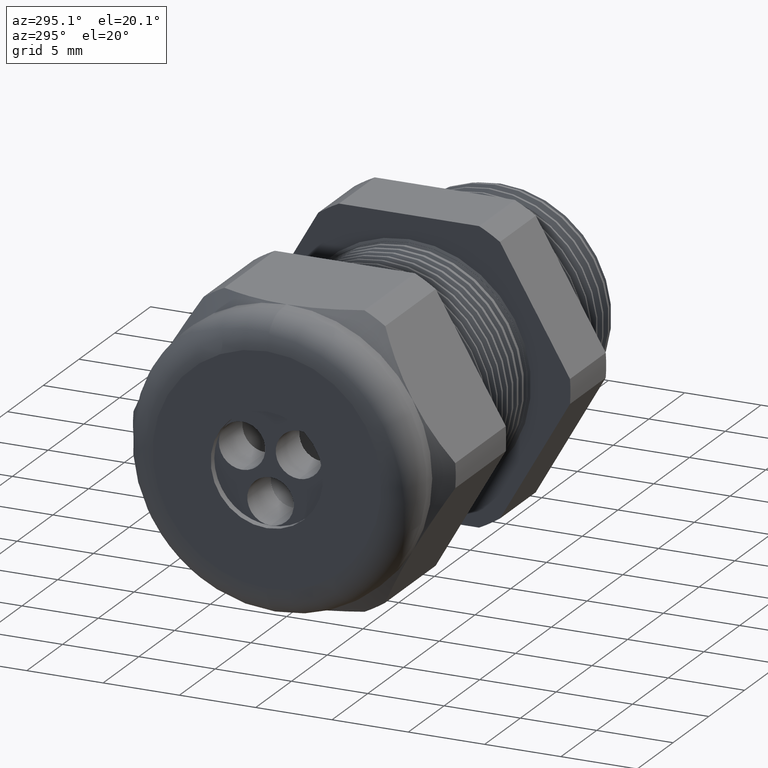
[diagram: clean part render]
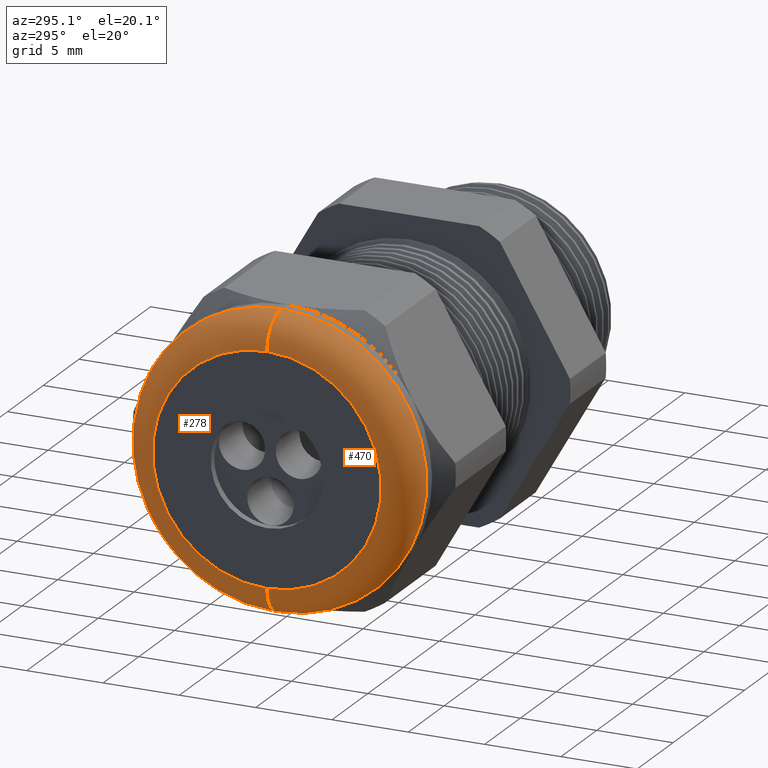
[diagram: same view with one multi-face feature highlighted, each face labeled with its STEP entity id]
A machine part, auxiliary view. The highlighted faces form ONE feature: a constant-radius fillet chain: 2 tangent blend faces with common blend radius 2.032 mm. The faces share edges in the B-rep.
Their STEP definitions:
[1] entity #278 (Torus):
#197 = EDGE_LOOP ( 'NONE', ( #198, #254, #257, #260 ) ) ;
#198 = ORIENTED_EDGE ( 'NONE', *, *, #199, .F. ) ;
#199 = EDGE_CURVE ( 'NONE', #200, #1168, #1727, .T. ) ;
#200 = VERTEX_POINT ( 'NONE', #1722 ) ;
#254 = ORIENTED_EDGE ( 'NONE', *, *, #255, .T. ) ;
#255 = EDGE_CURVE ( 'NONE', #200, #256, #1866, .T. ) ;
#256 = VERTEX_POINT ( 'NONE', #1861 ) ;
#257 = ORIENTED_EDGE ( 'NONE', *, *, #258, .F. ) ;
#258 = EDGE_CURVE ( 'NONE', #259, #256, #1860, .T. ) ;
#259 = VERTEX_POINT ( 'NONE', #1855 ) ;
#260 = ORIENTED_EDGE ( 'NONE', *, *, #261, .F. ) ;
#261 = EDGE_CURVE ( 'NONE', #1168, #259, #1853, .T. ) ;
#278 = ADVANCED_FACE ( 'NONE', ( #1885 ), #1884, .T. ) ;
#1168 = VERTEX_POINT ( 'NONE', #3371 ) ;
#1722 = CARTESIAN_POINT ( 'NONE',  ( -1.210000000000000000, 0.0000000000000000000, -0.3750000000000001100 ) ) ;
#1723 = DIRECTION ( 'NONE',  ( 0.0000000000000000000, 0.0000000000000000000, 1.000000000000000000 ) ) ;
#1724 = DIRECTION ( 'NONE',  ( 1.000000000000000000, 0.0000000000000000000, 0.0000000000000000000 ) ) ;
#1725 = CARTESIAN_POINT ( 'NONE',  ( -1.210000000000000000, 0.0000000000000000000, 0.0000000000000000000 ) ) ;
#1726 = AXIS2_PLACEMENT_3D ( 'NONE', #1725, #1724, #1723 ) ;
#1727 = CIRCLE ( 'NONE', #1726, 0.3750000000000001100 ) ;
#1849 = DIRECTION ( 'NONE',  ( 0.0000000000000000000, 0.0000000000000000000, -1.000000000000000000 ) ) ;
#1850 = DIRECTION ( 'NONE',  ( 0.0000000000000000000, -1.000000000000000000, 0.0000000000000000000 ) ) ;
#1851 = CARTESIAN_POINT ( 'NONE',  ( -1.210000000000000000, 0.0000000000000000000, 0.2950000000000001000 ) ) ;
#1852 = AXIS2_PLACEMENT_3D ( 'NONE', #1851, #1850, #1849 ) ;
#1853 = CIRCLE ( 'NONE', #1852, 0.08000000000000000200 ) ;
#1855 = CARTESIAN_POINT ( 'NONE',  ( -1.289999999999999800, 0.0000000000000000000, 0.2950000000000001000 ) ) ;
#1856 = DIRECTION ( 'NONE',  ( 0.0000000000000000000, 0.0000000000000000000, 1.000000000000000000 ) ) ;
#1857 = DIRECTION ( 'NONE',  ( -1.000000000000000000, 0.0000000000000000000, 0.0000000000000000000 ) ) ;
#1858 = CARTESIAN_POINT ( 'NONE',  ( -1.289999999999999800, 0.0000000000000000000, 0.0000000000000000000 ) ) ;
#1859 = AXIS2_PLACEMENT_3D ( 'NONE', #1858, #1857, #1856 ) ;
#1860 = CIRCLE ( 'NONE', #1859, 0.2950000000000001000 ) ;
#1861 = CARTESIAN_POINT ( 'NONE',  ( -1.289999999999999800, 4.102566777143634000E-017, -0.2950000000000001000 ) ) ;
#1862 = DIRECTION ( 'NONE',  ( 0.0000000000000000000, -1.224646799147353500E-016, 1.000000000000000000 ) ) ;
#1863 = DIRECTION ( 'NONE',  ( 0.0000000000000000000, 1.000000000000000000, 1.224646799147353200E-016 ) ) ;
#1864 = CARTESIAN_POINT ( 'NONE',  ( -1.210000000000000000, 3.612708057484693200E-017, -0.2950000000000001000 ) ) ;
#1865 = AXIS2_PLACEMENT_3D ( 'NONE', #1864, #1863, #1862 ) ;
#1866 = CIRCLE ( 'NONE', #1865, 0.08000000000000000200 ) ;
#1880 = DIRECTION ( 'NONE',  ( 0.0000000000000000000, 0.0000000000000000000, 1.000000000000000000 ) ) ;
#1881 = DIRECTION ( 'NONE',  ( -1.000000000000000000, 0.0000000000000000000, 0.0000000000000000000 ) ) ;
#1882 = CARTESIAN_POINT ( 'NONE',  ( -1.210000000000000000, 0.0000000000000000000, 0.0000000000000000000 ) ) ;
#1883 = AXIS2_PLACEMENT_3D ( 'NONE', #1882, #1881, #1880 ) ;
#1884 = TOROIDAL_SURFACE ( 'NONE', #1883, 0.2950000000000001000, 0.08000000000000000200 ) ;
#1885 = FACE_OUTER_BOUND ( 'NONE', #197, .T. ) ;
#3371 = CARTESIAN_POINT ( 'NONE',  ( -1.210000000000000000, 4.592425496802576100E-017, 0.3750000000000001100 ) ) ;
[2] entity #470 (Torus):
#200 = VERTEX_POINT ( 'NONE', #1722 ) ;
#255 = EDGE_CURVE ( 'NONE', #200, #256, #1866, .T. ) ;
#256 = VERTEX_POINT ( 'NONE', #1861 ) ;
#259 = VERTEX_POINT ( 'NONE', #1855 ) ;
#261 = EDGE_CURVE ( 'NONE', #1168, #259, #1853, .T. ) ;
#470 = ADVANCED_FACE ( 'NONE', ( #2179 ), #2178, .T. ) ;
#471 = EDGE_LOOP ( 'NONE', ( #472, #473, #474, #475 ) ) ;
#472 = ORIENTED_EDGE ( 'NONE', *, *, #255, .F. ) ;
#473 = ORIENTED_EDGE ( 'NONE', *, *, #4665, .F. ) ;
#474 = ORIENTED_EDGE ( 'NONE', *, *, #261, .T. ) ;
#475 = ORIENTED_EDGE ( 'NONE', *, *, #4650, .F. ) ;
#1168 = VERTEX_POINT ( 'NONE', #3371 ) ;
#1722 = CARTESIAN_POINT ( 'NONE',  ( -1.210000000000000000, 0.0000000000000000000, -0.3750000000000001100 ) ) ;
#1849 = DIRECTION ( 'NONE',  ( 0.0000000000000000000, 0.0000000000000000000, -1.000000000000000000 ) ) ;
#1850 = DIRECTION ( 'NONE',  ( 0.0000000000000000000, -1.000000000000000000, 0.0000000000000000000 ) ) ;
#1851 = CARTESIAN_POINT ( 'NONE',  ( -1.210000000000000000, 0.0000000000000000000, 0.2950000000000001000 ) ) ;
#1852 = AXIS2_PLACEMENT_3D ( 'NONE', #1851, #1850, #1849 ) ;
#1853 = CIRCLE ( 'NONE', #1852, 0.08000000000000000200 ) ;
#1855 = CARTESIAN_POINT ( 'NONE',  ( -1.289999999999999800, 0.0000000000000000000, 0.2950000000000001000 ) ) ;
#1861 = CARTESIAN_POINT ( 'NONE',  ( -1.289999999999999800, 4.102566777143634000E-017, -0.2950000000000001000 ) ) ;
#1862 = DIRECTION ( 'NONE',  ( 0.0000000000000000000, -1.224646799147353500E-016, 1.000000000000000000 ) ) ;
#1863 = DIRECTION ( 'NONE',  ( 0.0000000000000000000, 1.000000000000000000, 1.224646799147353200E-016 ) ) ;
#1864 = CARTESIAN_POINT ( 'NONE',  ( -1.210000000000000000, 3.612708057484693200E-017, -0.2950000000000001000 ) ) ;
#1865 = AXIS2_PLACEMENT_3D ( 'NONE', #1864, #1863, #1862 ) ;
#1866 = CIRCLE ( 'NONE', #1865, 0.08000000000000000200 ) ;
#2175 = DIRECTION ( 'NONE',  ( 0.0000000000000000000, 0.0000000000000000000, 1.000000000000000000 ) ) ;
#2176 = DIRECTION ( 'NONE',  ( -1.000000000000000000, 0.0000000000000000000, 0.0000000000000000000 ) ) ;
#2177 = AXIS2_PLACEMENT_3D ( 'NONE', #2183, #2176, #2175 ) ;
#2178 = TOROIDAL_SURFACE ( 'NONE', #2177, 0.2950000000000001000, 0.08000000000000000200 ) ;
#2179 = FACE_OUTER_BOUND ( 'NONE', #471, .T. ) ;
#2183 = CARTESIAN_POINT ( 'NONE',  ( -1.210000000000000000, 0.0000000000000000000, 0.0000000000000000000 ) ) ;
#3371 = CARTESIAN_POINT ( 'NONE',  ( -1.210000000000000000, 4.592425496802576100E-017, 0.3750000000000001100 ) ) ;
#3744 = DIRECTION ( 'NONE',  ( 0.0000000000000000000, 0.0000000000000000000, 1.000000000000000000 ) ) ;
#3745 = DIRECTION ( 'NONE',  ( -1.000000000000000000, 0.0000000000000000000, 0.0000000000000000000 ) ) ;
#3746 = CARTESIAN_POINT ( 'NONE',  ( -1.289999999999999800, 0.0000000000000000000, 0.0000000000000000000 ) ) ;
#3747 = AXIS2_PLACEMENT_3D ( 'NONE', #3746, #3745, #3744 ) ;
#3752 = CIRCLE ( 'NONE', #3747, 0.2950000000000001000 ) ;
#3764 = DIRECTION ( 'NONE',  ( 0.0000000000000000000, 0.0000000000000000000, 1.000000000000000000 ) ) ;
#3765 = DIRECTION ( 'NONE',  ( 1.000000000000000000, 0.0000000000000000000, 0.0000000000000000000 ) ) ;
#3766 = CARTESIAN_POINT ( 'NONE',  ( -1.210000000000000000, 0.0000000000000000000, 0.0000000000000000000 ) ) ;
#3767 = AXIS2_PLACEMENT_3D ( 'NONE', #3766, #3765, #3764 ) ;
#3768 = CIRCLE ( 'NONE', #3767, 0.3750000000000001100 ) ;
#4650 = EDGE_CURVE ( 'NONE', #256, #259, #3752, .T. ) ;
#4665 = EDGE_CURVE ( 'NONE', #1168, #200, #3768, .T. ) ;